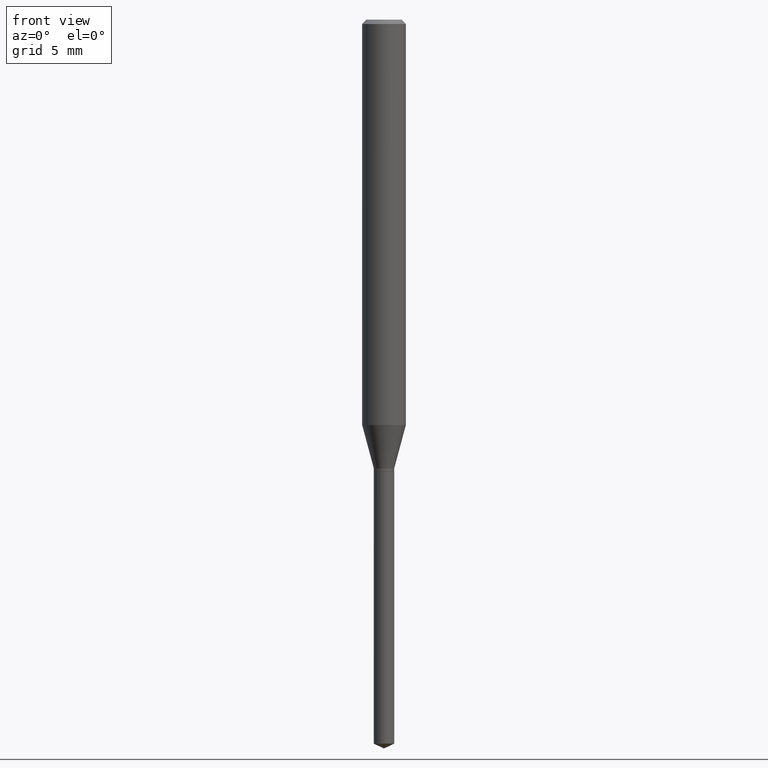
[diagram: clean part render]
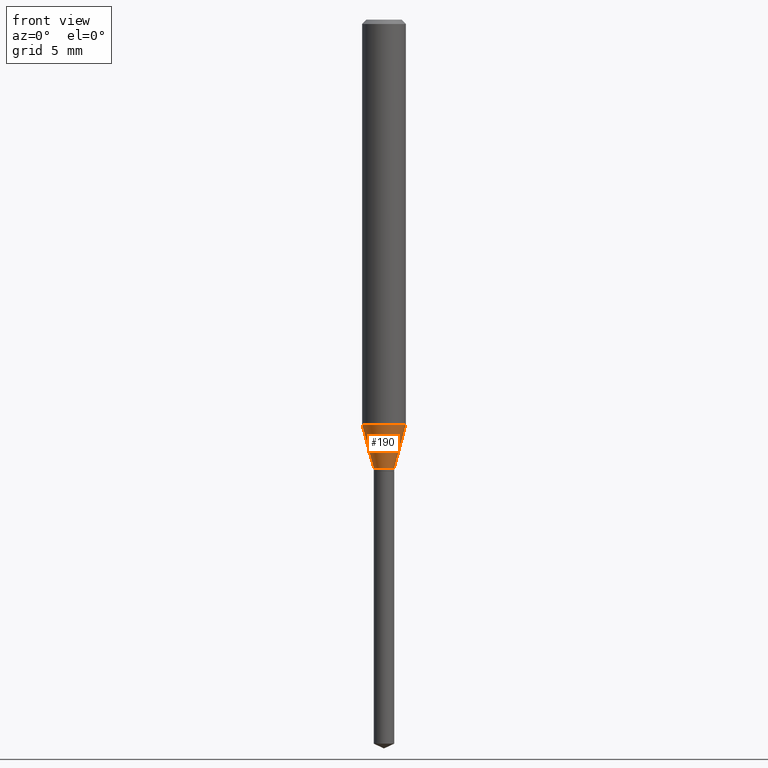
[diagram: same view with one face highlighted and labeled with its STEP entity id]
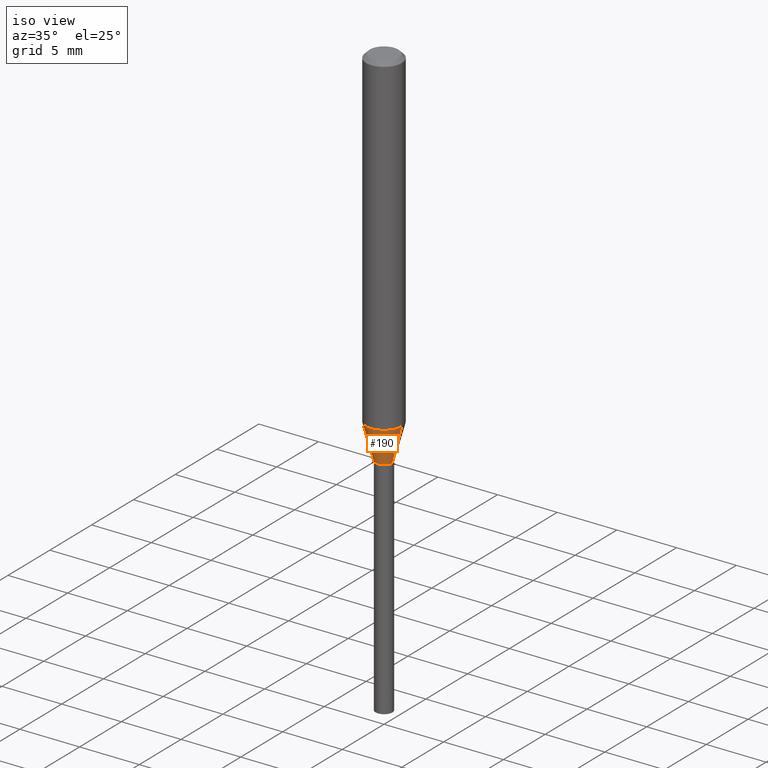
[diagram: same view with one face highlighted and labeled with its STEP entity id]
A machine part, front view. The second image highlights one B-rep face of the part: STEP entity #190.
A second angle (iso view) of the same face is appended — the face is thin or edge-on in the first view.
In plain terms, the highlighted conical surface has half-angle 15 deg.
Its self-contained STEP definition (entity closure, byte-faithful):
#15 = CARTESIAN_POINT ( 'NONE',  ( -0.05905000000000013710, -3.404086783016143258E-15, -1.095140399561580269 ) ) ;
#18 = CIRCLE ( 'NONE', #230, 0.05905000000000013710 ) ;
#23 = EDGE_LOOP ( 'NONE', ( #45, #425, #235, #284 ) ) ;
#37 = VECTOR ( 'NONE', #178, 39.37007874015747433 ) ;
#42 = VERTEX_POINT ( 'NONE', #15 ) ;
#45 = ORIENTED_EDGE ( 'NONE', *, *, #319, .F. ) ;
#47 = AXIS2_PLACEMENT_3D ( 'NONE', #72, #420, #220 ) ;
#48 = LINE ( 'NONE', #89, #115 ) ;
#51 = VERTEX_POINT ( 'NONE', #206 ) ;
#57 = DIRECTION ( 'NONE',  ( 1.000000000000000000, -6.982962677686270655E-15, 0.000000000000000000 ) ) ;
#72 = CARTESIAN_POINT ( 'NONE',  ( 2.965620021260715020E-29, -4.234119419615082783E-15, -1.212700000000000111 ) ) ;
#89 = CARTESIAN_POINT ( 'NONE',  ( -0.02755000000000001545, -4.038364895913174653E-15, -1.212700000000000111 ) ) ;
#115 = VECTOR ( 'NONE', #351, 39.37007874015747433 ) ;
#118 = CARTESIAN_POINT ( 'NONE',  ( 0.05905000000000013710, -4.236006214599858855E-15, -1.095140399561580269 ) ) ;
#119 = CARTESIAN_POINT ( 'NONE',  ( 2.678131685520970717E-29, -3.823662268482483934E-15, -1.095140399561580269 ) ) ;
#127 = AXIS2_PLACEMENT_3D ( 'NONE', #403, #211, #57 ) ;
#160 = CIRCLE ( 'NONE', #127, 0.02755000000000001545 ) ;
#178 = DIRECTION ( 'NONE',  ( 0.2588190451025213501, 1.565188264969621968E-15, 0.9659258262890682012 ) ) ;
#190 = ADVANCED_FACE ( 'NONE', ( #412 ), #251, .T. ) ;
#203 = VERTEX_POINT ( 'NONE', #118 ) ;
#204 = DIRECTION ( 'NONE',  ( -2.445468806185136597E-29, 3.491481338843145583E-15, 1.000000000000000000 ) ) ;
#206 = CARTESIAN_POINT ( 'NONE',  ( 0.02755000000000001545, -4.426500041385339576E-15, -1.212700000000000111 ) ) ;
#211 = DIRECTION ( 'NONE',  ( -2.445468806185136597E-29, 3.491481338843145583E-15, 1.000000000000000000 ) ) ;
#220 = DIRECTION ( 'NONE',  ( 1.000000000000000000, -6.982962677686270655E-15, 0.000000000000000000 ) ) ;
#230 = AXIS2_PLACEMENT_3D ( 'NONE', #119, #204, #281 ) ;
#235 = ORIENTED_EDGE ( 'NONE', *, *, #242, .T. ) ;
#242 = EDGE_CURVE ( 'NONE', #51, #203, #367, .T. ) ;
#244 = CARTESIAN_POINT ( 'NONE',  ( 0.02755000000000001545, -4.426500041385339576E-15, -1.212700000000000111 ) ) ;
#251 = CONICAL_SURFACE ( 'NONE', #47, 0.02755000000000001545, 0.2617993877991500740 ) ;
#281 = DIRECTION ( 'NONE',  ( 1.000000000000000000, -6.982962677686264344E-15, 0.000000000000000000 ) ) ;
#284 = ORIENTED_EDGE ( 'NONE', *, *, #419, .F. ) ;
#311 = VERTEX_POINT ( 'NONE', #434 ) ;
#319 = EDGE_CURVE ( 'NONE', #311, #42, #48, .T. ) ;
#340 = EDGE_CURVE ( 'NONE', #311, #51, #160, .T. ) ;
#351 = DIRECTION ( 'NONE',  ( -0.2588190451025213501, 5.211531920934551042E-15, 0.9659258262890682012 ) ) ;
#367 = LINE ( 'NONE', #244, #37 ) ;
#403 = CARTESIAN_POINT ( 'NONE',  ( 2.965620021260715020E-29, -4.234119419615082783E-15, -1.212700000000000111 ) ) ;
#412 = FACE_OUTER_BOUND ( 'NONE', #23, .T. ) ;
#419 = EDGE_CURVE ( 'NONE', #42, #203, #18, .T. ) ;
#420 = DIRECTION ( 'NONE',  ( -2.445468806185136597E-29, 3.491481338843145583E-15, 1.000000000000000000 ) ) ;
#425 = ORIENTED_EDGE ( 'NONE', *, *, #340, .T. ) ;
#434 = CARTESIAN_POINT ( 'NONE',  ( -0.02755000000000001545, -4.051981673134663170E-15, -1.212700000000000111 ) ) ;